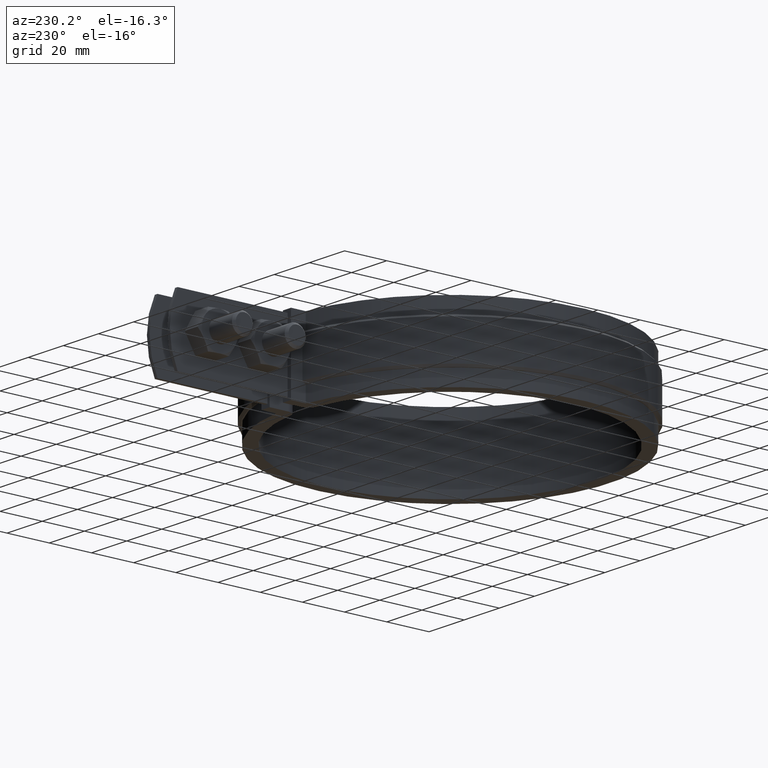
[diagram: clean part render]
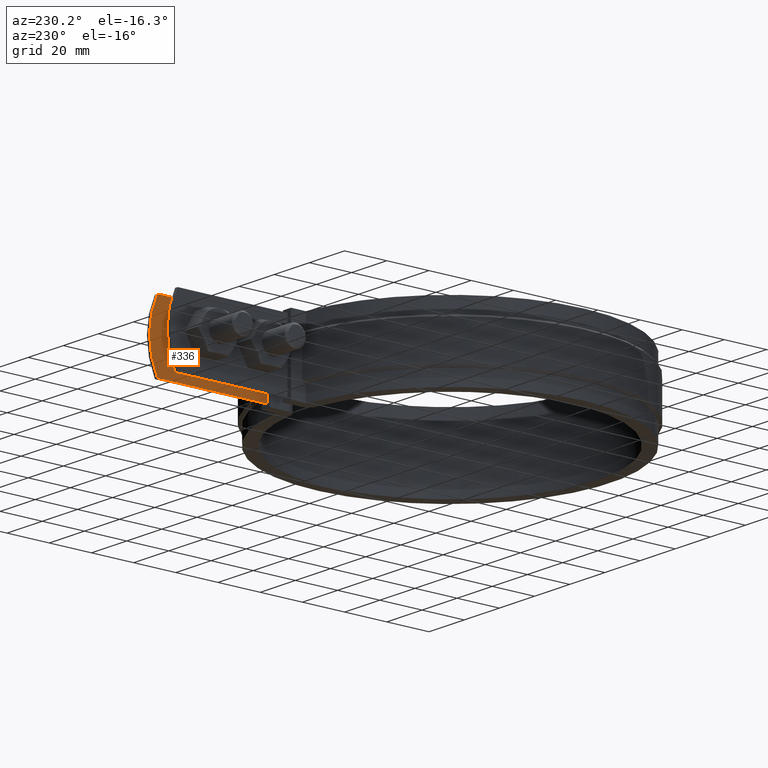
[diagram: same view with one face highlighted and labeled with its STEP entity id]
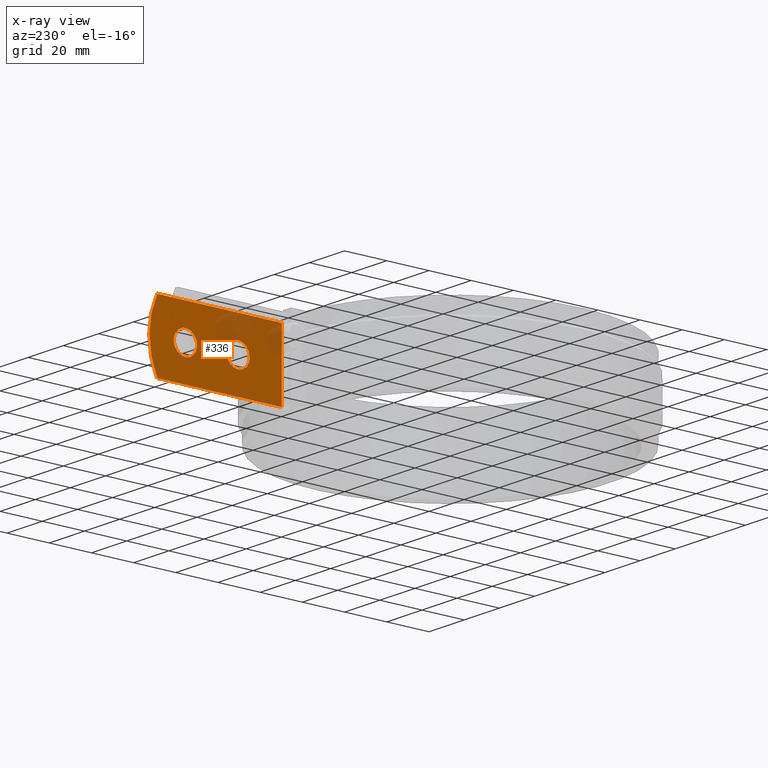
[diagram: x-ray of the same camera — body ghosted, the highlighted face saturated]
A machine part, auxiliary view. The second image highlights one B-rep face of the part: STEP entity #336.
The next image is the same camera in x-ray: the body ghosted, the highlighted face saturated — about 13% of this face is hidden behind the body in this view.
In plain terms, the highlighted planar face has unit normal (1, 0, 0).
Its self-contained STEP definition (entity closure, byte-faithful):
#336 = ADVANCED_FACE( '', ( #519, #520, #521 ), #522, .F. );
#519 = FACE_OUTER_BOUND( '', #1224, .T. );
#520 = FACE_BOUND( '', #1225, .T. );
#521 = FACE_BOUND( '', #1226, .T. );
#522 = PLANE( '', #1227 );
#1224 = EDGE_LOOP( '', ( #2810, #2811, #2812, #2813 ) );
#1225 = EDGE_LOOP( '', ( #2814 ) );
#1226 = EDGE_LOOP( '', ( #2815 ) );
#1227 = AXIS2_PLACEMENT_3D( '', #2816, #2817, #2818 );
#2810 = ORIENTED_EDGE( '', *, *, #4700, .T. );
#2811 = ORIENTED_EDGE( '', *, *, #4645, .T. );
#2812 = ORIENTED_EDGE( '', *, *, #4637, .F. );
#2813 = ORIENTED_EDGE( '', *, *, #4624, .F. );
#2814 = ORIENTED_EDGE( '', *, *, #4699, .F. );
#2815 = ORIENTED_EDGE( '', *, *, #4697, .F. );
#2816 = CARTESIAN_POINT( '', ( 5.00000000000000, 138.297141712794, 4.33680868994202E-016 ) );
#2817 = DIRECTION( '', ( 1.00000000000000, 2.18531126355618E-049, 3.62806898401941E-033 ) );
#2818 = DIRECTION( '', ( 0.000000000000000, 1.00000000000000, -6.02334540269725E-017 ) );
#4624 = EDGE_CURVE( '', #5038, #5039, #5040, .T. );
#4637 = EDGE_CURVE( '', #5039, #5064, #5065, .T. );
#4645 = EDGE_CURVE( '', #5077, #5064, #5078, .T. );
#4697 = EDGE_CURVE( '', #5169, #5169, #5170, .F. );
#4699 = EDGE_CURVE( '', #5172, #5172, #5173, .F. );
#4700 = EDGE_CURVE( '', #5038, #5077, #5174, .T. );
#5038 = VERTEX_POINT( '', #5864 );
#5039 = VERTEX_POINT( '', #5865 );
#5040 = CIRCLE( '', #5866, 36.0000000000000 );
#5064 = VERTEX_POINT( '', #5896 );
#5065 = LINE( '', #5897, #5898 );
#5077 = VERTEX_POINT( '', #5956 );
#5078 = LINE( '', #5957, #5958 );
#5169 = VERTEX_POINT( '', #6729 );
#5170 = CIRCLE( '', #6730, 5.50000000000000 );
#5172 = VERTEX_POINT( '', #6773 );
#5173 = CIRCLE( '', #6774, 5.50000000000000 );
#5174 = LINE( '', #6775, #6776 );
#5864 = CARTESIAN_POINT( '', ( 5.00000000000000, 134.546172705987, -32.0000000000000 ) );
#5865 = CARTESIAN_POINT( '', ( 5.00000000000000, 134.546172705987, 1.08420217248550E-016 ) );
#5866 = AXIS2_PLACEMENT_3D( '', #8510, #8511, #8512 );
#5896 = CARTESIAN_POINT( '', ( 5.00000000000000, 75.6010581936523, 4.33680868994202E-016 ) );
#5897 = CARTESIAN_POINT( '', ( 5.00000000000000, 5.55111512312578E-014, 4.33680868994202E-016 ) );
#5898 = VECTOR( '', #8537, 1000.00000000000 );
#5956 = CARTESIAN_POINT( '', ( 5.00000000000000, 75.6010581936523, -32.0000000000000 ) );
#5957 = CARTESIAN_POINT( '', ( 5.00000000000000, 75.6010581936523, 4.33680868994202E-016 ) );
#5958 = VECTOR( '', #8550, 1000.00000000000 );
#6729 = CARTESIAN_POINT( '', ( 5.00000000000000, 96.2971417127935, -21.5000000000000 ) );
#6730 = AXIS2_PLACEMENT_3D( '', #8590, #8591, #8592 );
#6773 = CARTESIAN_POINT( '', ( 5.00000000000000, 121.297141712793, -21.5000000000000 ) );
#6774 = AXIS2_PLACEMENT_3D( '', #8593, #8594, #8595 );
#6775 = CARTESIAN_POINT( '', ( 5.00000000000000, 138.297141712794, -32.0000000000000 ) );
#6776 = VECTOR( '', #8596, 1000.00000000000 );
#8510 = CARTESIAN_POINT( '', ( 5.00000000000000, 102.297141712793, -16.0000000000000 ) );
#8511 = DIRECTION( '', ( 1.00000000000000, 2.18531126355618E-049, 3.62806898401941E-033 ) );
#8512 = DIRECTION( '', ( 3.62806898401941E-033, 0.000000000000000, -1.00000000000000 ) );
#8537 = DIRECTION( '', ( 2.18531126355618E-049, -1.00000000000000, 0.000000000000000 ) );
#8550 = DIRECTION( '', ( 0.000000000000000, 0.000000000000000, 1.00000000000000 ) );
#8590 = CARTESIAN_POINT( '', ( 5.00000000000000, 96.2971417127935, -16.0000000000000 ) );
#8591 = DIRECTION( '', ( 1.00000000000000, 2.18531126355618E-049, 3.62806898401941E-033 ) );
#8592 = DIRECTION( '', ( 3.62806898401941E-033, 0.000000000000000, -1.00000000000000 ) );
#8593 = CARTESIAN_POINT( '', ( 5.00000000000000, 121.297141712793, -16.0000000000000 ) );
#8594 = DIRECTION( '', ( 1.00000000000000, 2.18531126355618E-049, 3.62806898401941E-033 ) );
#8595 = DIRECTION( '', ( 3.62806898401941E-033, 0.000000000000000, -1.00000000000000 ) );
#8596 = DIRECTION( '', ( 2.18531126355618E-049, -1.00000000000000, 0.000000000000000 ) );